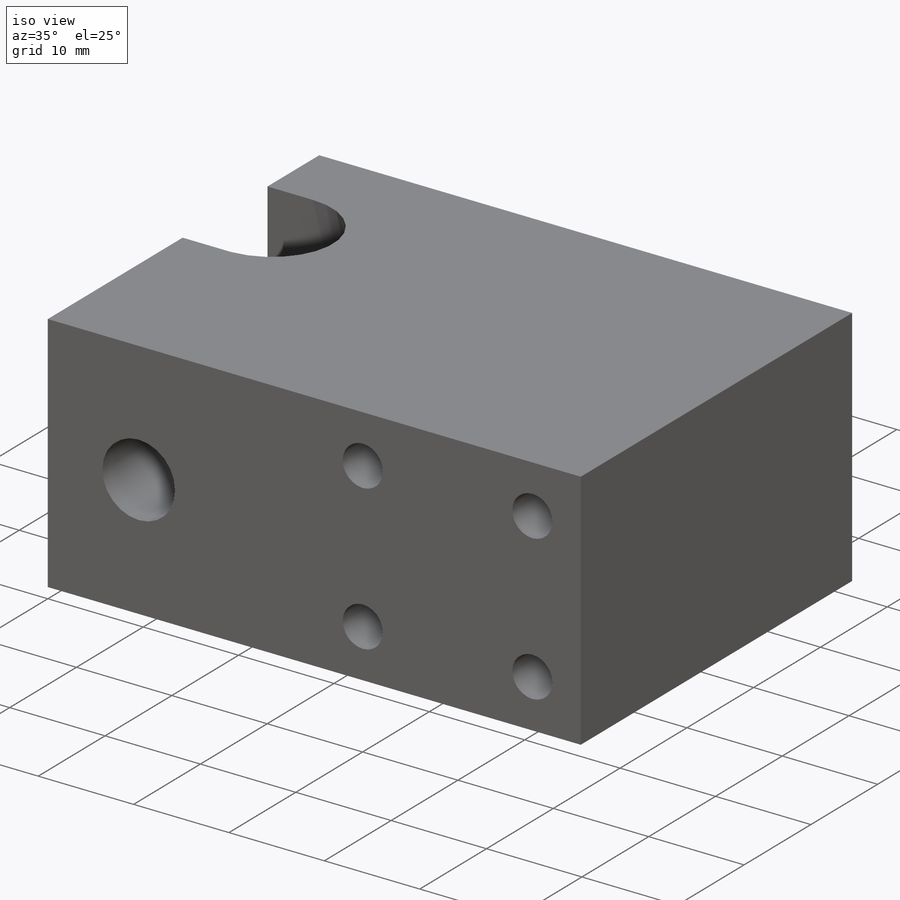
[diagram: iso view]
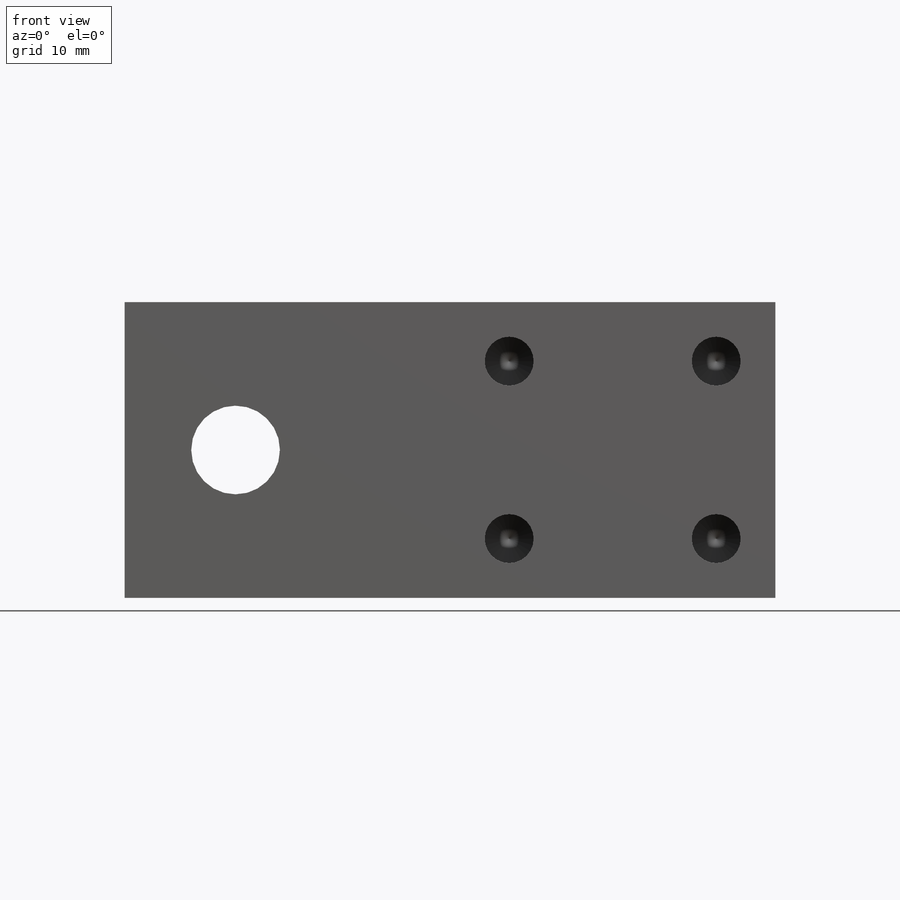
[diagram: front view]
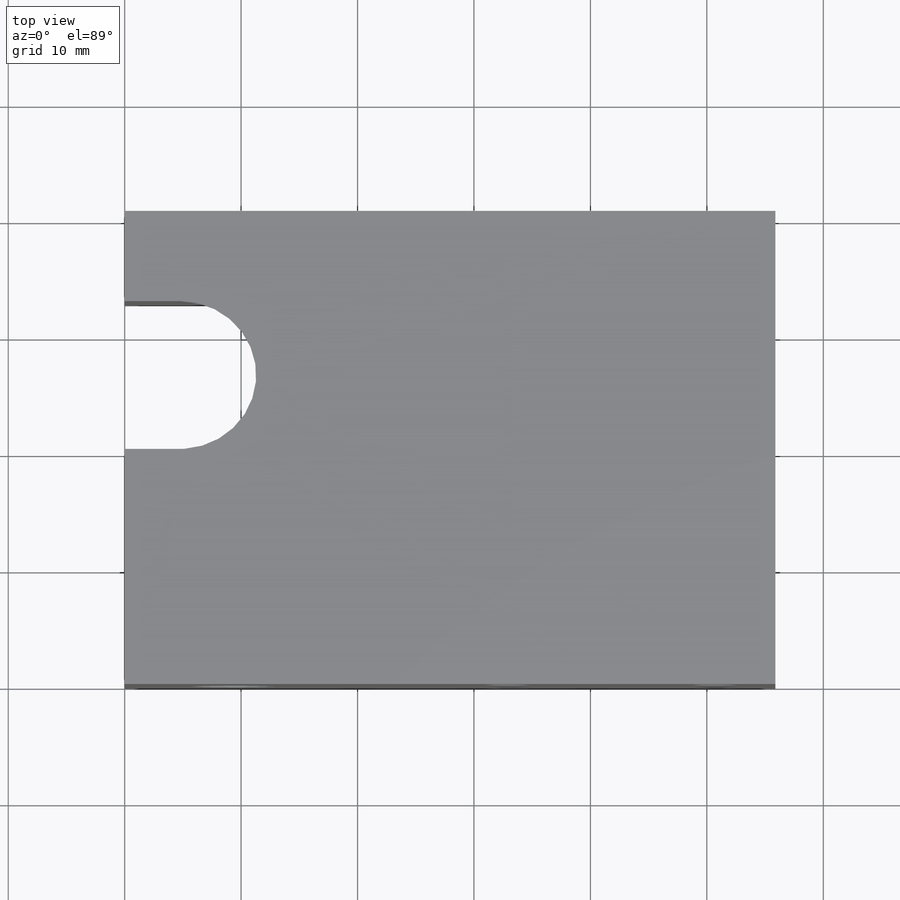
[diagram: top view]
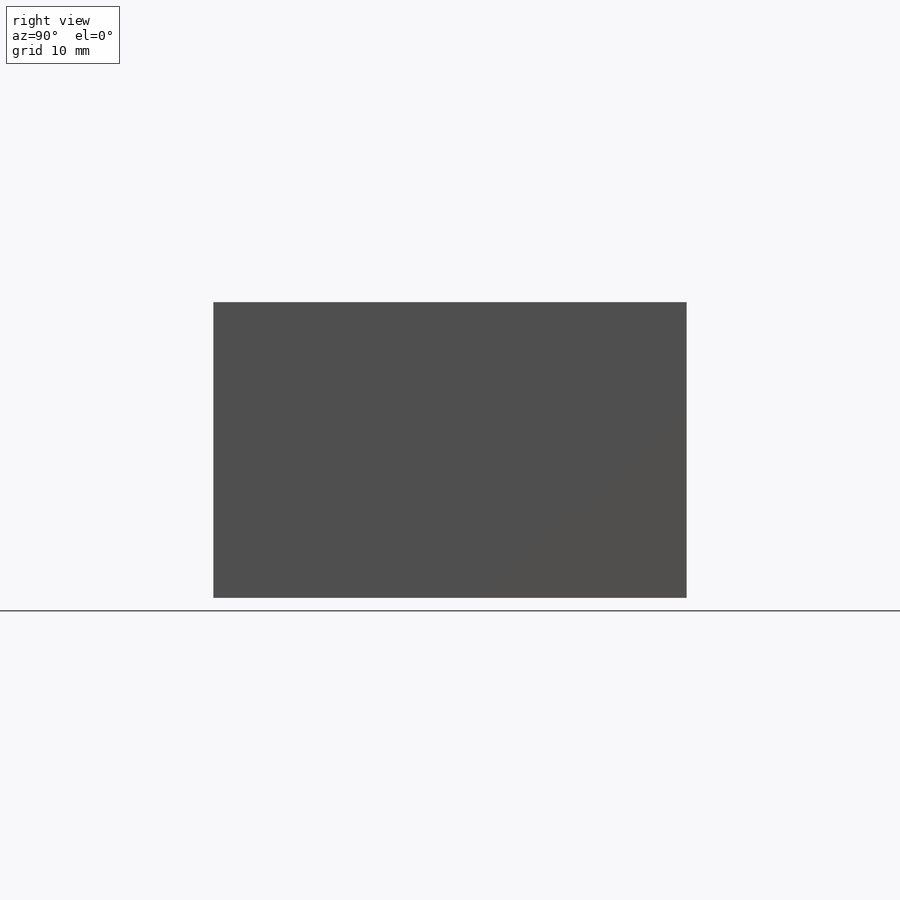
[diagram: right view]
SOLIDWORKS PART (.sldprt)
format: sldprt  version: not decoded by parser v0  size: 482,304 bytes
history: native  units: mm
features: sketch x6, thread x4, cut_extrude x3, material x1, extrude x1, hole x1, plane x1 (+12 scaffold rows collapsed)
feature tree (29):
  scaffold x12  (default folders/planes/origin — collapsed)
  material  "Material <not specified>"
  sketch  "Sketch1"  dims[D1=40.64mm D2=55.88mm]
  extrude  "Boss-Extrude1"  Depth=25.4mm
  sketch  "Sketch3"  dims[D1=7.62mm D2=9.525mm D3=12.7mm]
  cut_extrude  "Cut-Extrude1"  [1 undecoded]
  sketch  "Sketch4"  dims[D1=14.1mm D2=9.525mm D3=17.78mm D4=33.02mm]
  cut_extrude  "Cut-Extrude2"  [1 undecoded]
  hole  "M5x0.8 Tapped Hole1"  Diameter=4.2mm Depth=25.4mm
  sketch  "Sketch7"  dims[D1=5.08mm D2=5.08mm D3=2.0 D4=2.0]
  sketch  "Sketch6"  dims[hole-wizard template sketch: 47 standard entries collapsed; hole parameters kept: c15.Tap Drill Depth=25.4mm c15.D3=~14.816244mm c15.Drill Angle=118.0deg]
  thread  "Hole Thread1"  Diameter=20.32mm  [1 undecoded]
  thread  "Hole Thread2"  Diameter=20.32mm  [1 undecoded]
  thread  "Hole Thread3"  Diameter=20.32mm  [1 undecoded]
  thread  "Hole Thread4"  Diameter=20.32mm  [1 undecoded]
  plane  "Plane1"
  sketch  "Sketch8"  dims[D1=12.7mm D2=14.1mm D3=1.35mm]
  cut_extrude  "Cut-Extrude3"  [1 undecoded]
decode coverage: 12 of 15 modeling features carry decoded parameters
note: ~ marks probable driven/reference dimensions
note: 7 parameter values undecoded
summary: no parameter record found for 3 features
note: suppression state not decoded; provenance and decode notes live in map.json
